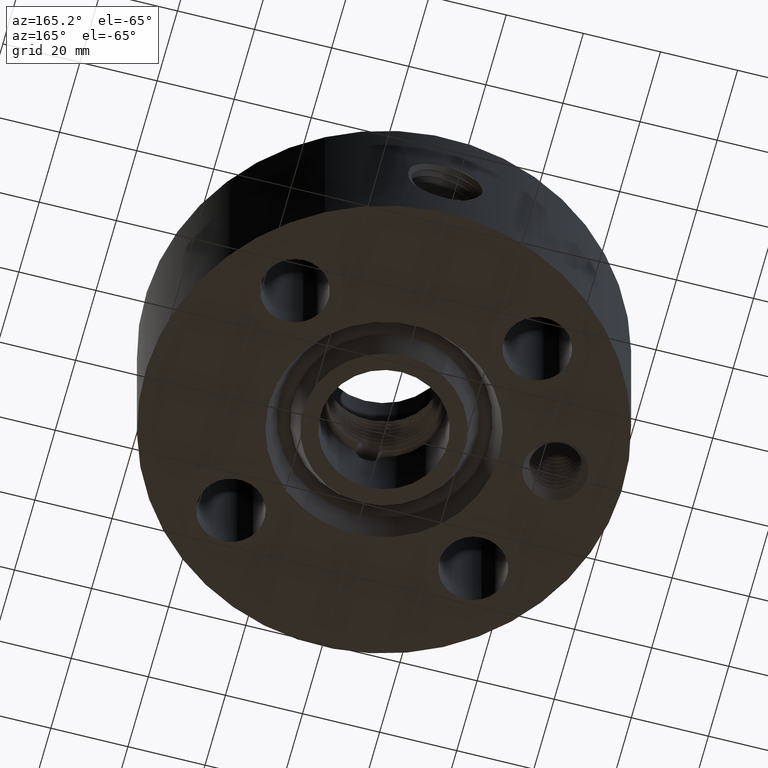
[diagram: clean part render]
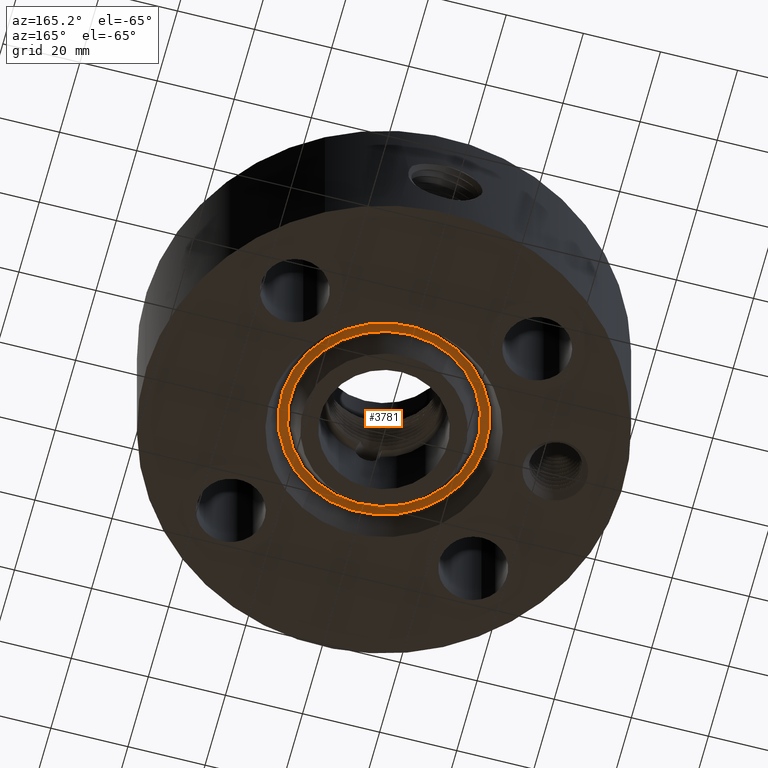
[diagram: same view with one face highlighted and labeled with its STEP entity id]
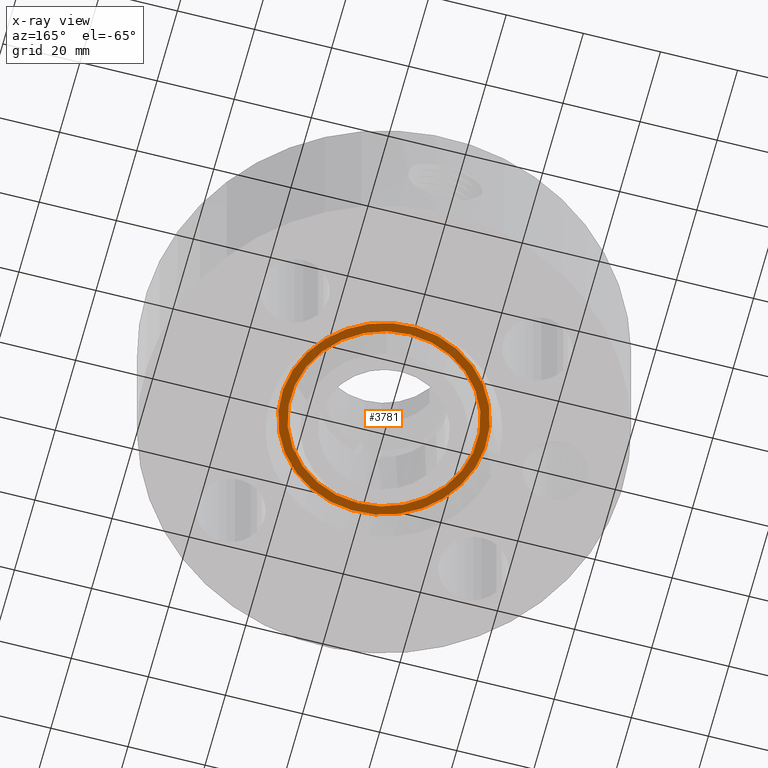
[diagram: x-ray of the same camera — body ghosted, the highlighted face saturated]
A machine part, auxiliary view. The second image highlights one B-rep face of the part: STEP entity #3781.
The next image is the same camera in x-ray: the body ghosted, the highlighted face saturated — about 0% of this face is hidden behind the body in this view.
In plain terms, the highlighted planar face has unit normal (0, 0, 1).
Its self-contained STEP definition (entity closure, byte-faithful):
#2862=AXIS2_PLACEMENT_3D('Circle Axis2P3D',#2860,#2861,$) ;
#2888=AXIS2_PLACEMENT_3D('Circle Axis2P3D',#2886,#2887,$) ;
#3757=AXIS2_PLACEMENT_3D('Plane Axis2P3D',#3754,#3755,#3756) ;
#3761=AXIS2_PLACEMENT_3D('Circle Axis2P3D',#3759,#3760,$) ;
#3770=AXIS2_PLACEMENT_3D('Circle Axis2P3D',#3768,#3769,$) ;
#2860=CARTESIAN_POINT('Axis2P3D Location',(0.,0.,0.250000000001)) ;
#2864=CARTESIAN_POINT('Vertex',(0.457677432904,-0.837772921436,0.250000000001)) ;
#2866=CARTESIAN_POINT('Vertex',(-0.457677432904,0.837772921436,0.250000000001)) ;
#2886=CARTESIAN_POINT('Axis2P3D Location',(0.,0.,0.250000000001)) ;
#3754=CARTESIAN_POINT('Axis2P3D Location',(0.,0.954637156453,0.250000000001)) ;
#3759=CARTESIAN_POINT('Axis2P3D Location',(0.,0.,0.250000000001)) ;
#3763=CARTESIAN_POINT('Vertex',(-0.501173644308,0.917392202352,0.250000000001)) ;
#3765=CARTESIAN_POINT('Vertex',(0.501173644308,-0.917392202352,0.250000000001)) ;
#3768=CARTESIAN_POINT('Axis2P3D Location',(0.,0.,0.250000000001)) ;
#2861=DIRECTION('Axis2P3D Direction',(0.,0.,0.0393700787402)) ;
#2887=DIRECTION('Axis2P3D Direction',(0.,0.,0.0393700787402)) ;
#3755=DIRECTION('Axis2P3D Direction',(0.,0.,0.0393700787402)) ;
#3756=DIRECTION('Axis2P3D XDirection',(0.0393700787402,0.,0.)) ;
#3760=DIRECTION('Axis2P3D Direction',(0.,0.,0.0393700787402)) ;
#3769=DIRECTION('Axis2P3D Direction',(0.,0.,0.0393700787402)) ;
#3774=ORIENTED_EDGE('',*,*,#3767,.F.) ;
#3775=ORIENTED_EDGE('',*,*,#3772,.F.) ;
#3778=ORIENTED_EDGE('',*,*,#2868,.T.) ;
#3779=ORIENTED_EDGE('',*,*,#2890,.T.) ;
#3780=FACE_BOUND('',#3777,.T.) ;
#3781=ADVANCED_FACE('PartBody',(#3776,#3780),#3758,.F.) ;
#2863=CIRCLE('generated circle',#2862,0.954637156453) ;
#2889=CIRCLE('generated circle',#2888,0.954637156453) ;
#3762=CIRCLE('generated circle',#3761,1.04536284355) ;
#3771=CIRCLE('generated circle',#3770,1.04536284355) ;
#2868=EDGE_CURVE('',#2865,#2867,#2863,.T.) ;
#2890=EDGE_CURVE('',#2867,#2865,#2889,.T.) ;
#3767=EDGE_CURVE('',#3764,#3766,#3762,.T.) ;
#3772=EDGE_CURVE('',#3766,#3764,#3771,.T.) ;
#3773=EDGE_LOOP('',(#3774,#3775)) ;
#3777=EDGE_LOOP('',(#3778,#3779)) ;
#3776=FACE_OUTER_BOUND('',#3773,.T.) ;
#3758=PLANE('',#3757) ;
#2865=VERTEX_POINT('',#2864) ;
#2867=VERTEX_POINT('',#2866) ;
#3764=VERTEX_POINT('',#3763) ;
#3766=VERTEX_POINT('',#3765) ;